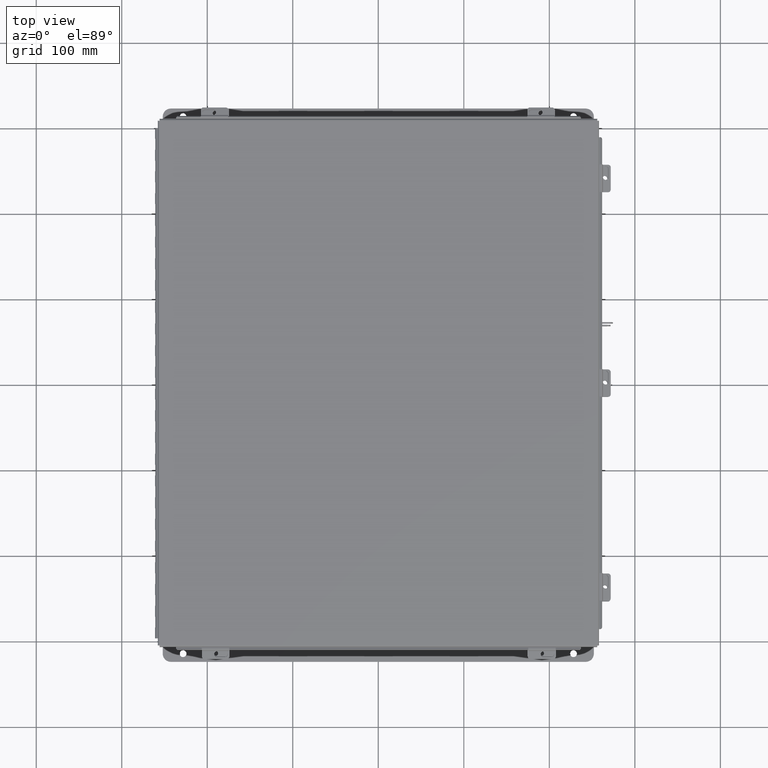
[diagram: clean part render]
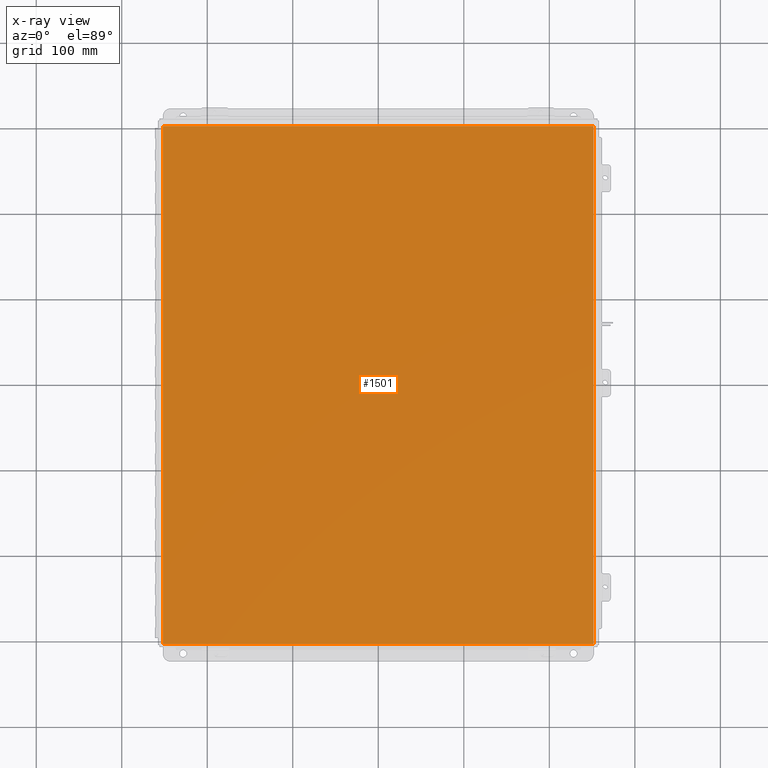
[diagram: x-ray — body ghosted, one internal face saturated and labeled with its STEP entity id]
A machine part, top view, then the same camera in x-ray: the body is ghosted and one INTERNAL B-rep face — a face not visible from any outside direction — is saturated and labeled: STEP entity #1501.
In plain terms, the highlighted planar face has unit normal (0, 0, -1).
Its self-contained STEP definition (entity closure, byte-faithful):
#680 = CARTESIAN_POINT ( 'NONE',  ( 9.912300000000000100, -11.92530000000000000, 4.268512490100411300E-017 ) ) ;
#715 = FACE_OUTER_BOUND ( 'NONE', #22051, .T. ) ;
#721 = EDGE_CURVE ( 'NONE', #13598, #14566, #7268, .T. ) ;
#1501 = ADVANCED_FACE ( 'NONE', ( #715 ), #18204, .F. ) ;
#2424 = VECTOR ( 'NONE', #23925, 39.37007874015748100 ) ;
#3060 = DIRECTION ( 'NONE',  ( -1.000000000000000000, 0.0000000000000000000, -0.0000000000000000000 ) ) ;
#3861 = VECTOR ( 'NONE', #8554, 39.37007874015748100 ) ;
#6635 = CARTESIAN_POINT ( 'NONE',  ( -9.912300000000000100, -11.92530000000000000, 4.268512490100411300E-017 ) ) ;
#7066 = VERTEX_POINT ( 'NONE', #680 ) ;
#7202 = EDGE_CURVE ( 'NONE', #13159, #7066, #13130, .T. ) ;
#7268 = LINE ( 'NONE', #13657, #18095 ) ;
#7480 = LINE ( 'NONE', #18006, #11977 ) ;
#7885 = DIRECTION ( 'NONE',  ( -1.000000000000000000, -0.0000000000000000000, -0.0000000000000000000 ) ) ;
#8253 = ORIENTED_EDGE ( 'NONE', *, *, #721, .T. ) ;
#8554 = DIRECTION ( 'NONE',  ( -0.0000000000000000000, 1.000000000000000000, -0.0000000000000000000 ) ) ;
#11512 = AXIS2_PLACEMENT_3D ( 'NONE', #12542, #14512, #3060 ) ;
#11977 = VECTOR ( 'NONE', #12187, 39.37007874015748100 ) ;
#12187 = DIRECTION ( 'NONE',  ( -0.0000000000000000000, -1.000000000000000000, -0.0000000000000000000 ) ) ;
#12416 = CARTESIAN_POINT ( 'NONE',  ( -10.00000000000000000, -11.92530000000000000, 0.0000000000000000000 ) ) ;
#12542 = CARTESIAN_POINT ( 'NONE',  ( 0.0000000000000000000, 0.0000000000000000000, 0.0000000000000000000 ) ) ;
#13130 = LINE ( 'NONE', #12416, #2424 ) ;
#13159 = VERTEX_POINT ( 'NONE', #15735 ) ;
#13598 = VERTEX_POINT ( 'NONE', #18969 ) ;
#13657 = CARTESIAN_POINT ( 'NONE',  ( -10.00000000000000000, 11.92529999999999600, 0.0000000000000000000 ) ) ;
#13702 = CARTESIAN_POINT ( 'NONE',  ( -9.912300000000000100, 11.92529999999999600, 4.268512490100411300E-017 ) ) ;
#14011 = LINE ( 'NONE', #6635, #3861 ) ;
#14512 = DIRECTION ( 'NONE',  ( 0.0000000000000000000, 0.0000000000000000000, -1.000000000000000000 ) ) ;
#14566 = VERTEX_POINT ( 'NONE', #13702 ) ;
#15735 = CARTESIAN_POINT ( 'NONE',  ( -9.912300000000000100, -11.92529999999999600, 4.268512490100411300E-017 ) ) ;
#17897 = ORIENTED_EDGE ( 'NONE', *, *, #19890, .F. ) ;
#18006 = CARTESIAN_POINT ( 'NONE',  ( 9.912300000000000100, 11.92529999999999600, 4.268512490100411300E-017 ) ) ;
#18022 = ORIENTED_EDGE ( 'NONE', *, *, #7202, .T. ) ;
#18095 = VECTOR ( 'NONE', #7885, 39.37007874015748100 ) ;
#18204 = PLANE ( 'NONE',  #11512 ) ;
#18850 = ORIENTED_EDGE ( 'NONE', *, *, #24453, .F. ) ;
#18969 = CARTESIAN_POINT ( 'NONE',  ( 9.912300000000000100, 11.92529999999999300, 4.268512490100411300E-017 ) ) ;
#19890 = EDGE_CURVE ( 'NONE', #13598, #7066, #7480, .T. ) ;
#22051 = EDGE_LOOP ( 'NONE', ( #17897, #8253, #18850, #18022 ) ) ;
#23925 = DIRECTION ( 'NONE',  ( 1.000000000000000000, 0.0000000000000000000, 0.0000000000000000000 ) ) ;
#24453 = EDGE_CURVE ( 'NONE', #13159, #14566, #14011, .T. ) ;